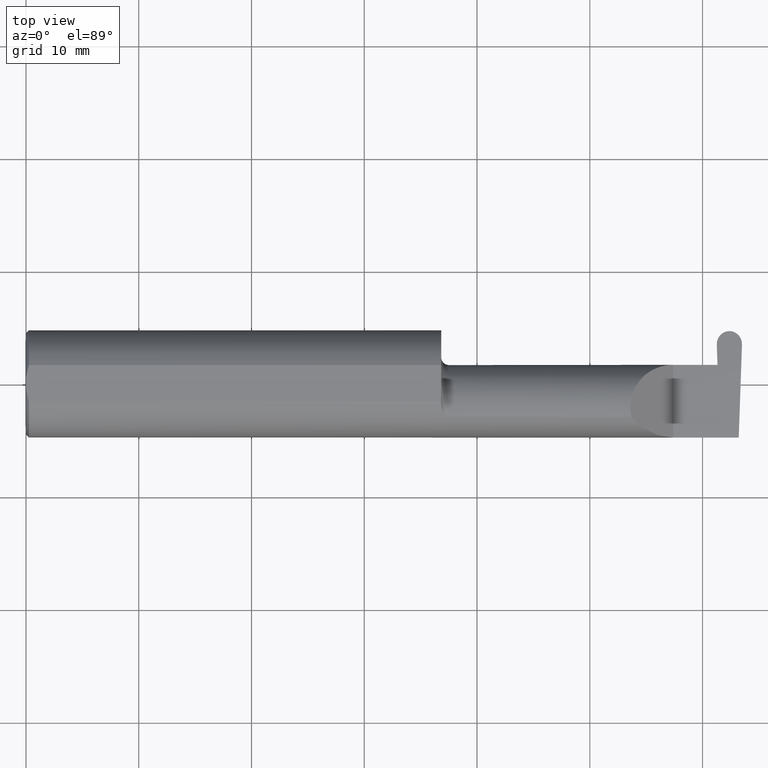
[diagram: clean part render]
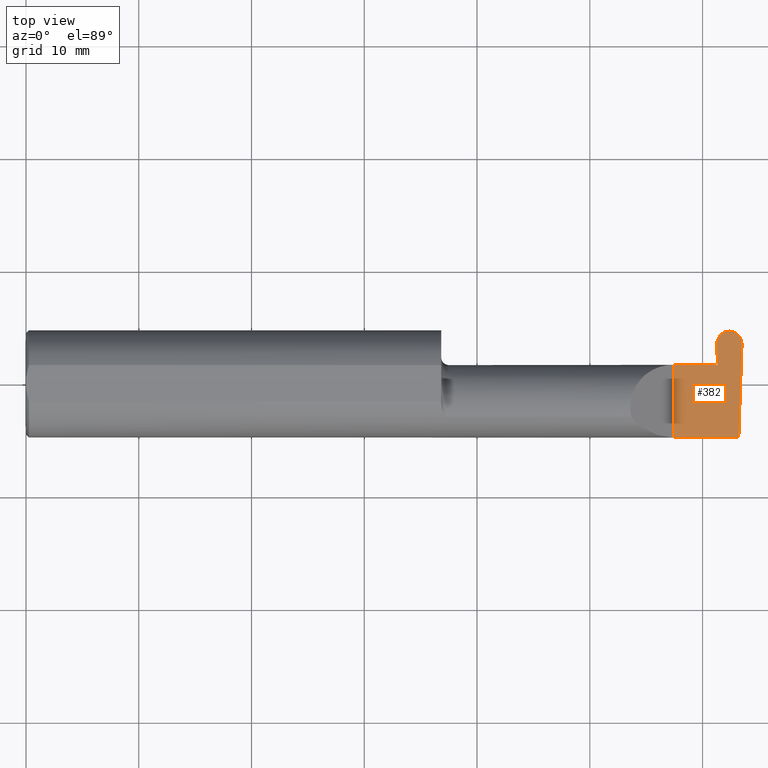
[diagram: same view with one face highlighted and labeled with its STEP entity id]
A machine part, top view. The second image highlights one B-rep face of the part: STEP entity #382.
In plain terms, the highlighted planar face has unit normal (-0, 0, -1).
Its self-contained STEP definition (entity closure, byte-faithful):
#7 = ORIENTED_EDGE ( 'NONE', *, *, #657, .T. ) ;
#10 = VERTEX_POINT ( 'NONE', #173 ) ;
#11 = LINE ( 'NONE', #448, #151 ) ;
#16 = DIRECTION ( 'NONE',  ( -0.03489949670249319069, -0.9993908270190959842, 0.000000000000000000 ) ) ;
#45 = CARTESIAN_POINT ( 'NONE',  ( 2.456309424548497322, 0.1846500000000000363, 0.000000000000000000 ) ) ;
#52 = VERTEX_POINT ( 'NONE', #517 ) ;
#64 = ORIENTED_EDGE ( 'NONE', *, *, #95, .F. ) ;
#89 = VECTOR ( 'NONE', #369, 39.37007874015748143 ) ;
#95 = EDGE_CURVE ( 'NONE', #10, #481, #312, .T. ) ;
#101 = CARTESIAN_POINT ( 'NONE',  ( 2.482665624698748186, 0.1846499999999999808, 5.261345637967953601E-18 ) ) ;
#104 = LINE ( 'NONE', #321, #359 ) ;
#109 = CARTESIAN_POINT ( 'NONE',  ( 2.499906297085412898, 0.1370998259008695819, 0.000000000000000000 ) ) ;
#129 = ORIENTED_EDGE ( 'NONE', *, *, #569, .F. ) ;
#132 = VERTEX_POINT ( 'NONE', #685 ) ;
#151 = VECTOR ( 'NONE', #174, 39.37007874015748143 ) ;
#152 = ORIENTED_EDGE ( 'NONE', *, *, #691, .F. ) ;
#157 = CARTESIAN_POINT ( 'NONE',  ( 2.411832552795360574, 0.1390138764844879860, 0.000000000000000000 ) ) ;
#158 = CARTESIAN_POINT ( 'NONE',  ( 2.414359555045604289, 0.06664999999999991764, 0.000000000000000000 ) ) ;
#166 = ORIENTED_EDGE ( 'NONE', *, *, #484, .T. ) ;
#170 = EDGE_LOOP ( 'NONE', ( #496, #7, #247, #152, #64, #491, #129, #646, #166 ) ) ;
#172 = CARTESIAN_POINT ( 'NONE',  ( 2.500000000000000000, -0.2500000000000000555, 0.000000000000000000 ) ) ;
#173 = CARTESIAN_POINT ( 'NONE',  ( 2.260000000000000231, 0.06665000000000002867, 1.285879139104721225E-16 ) ) ;
#174 = DIRECTION ( 'NONE',  ( 1.000000000000000000, -0.000000000000000000, -0.000000000000000000 ) ) ;
#192 =( BOUNDED_CURVE ( )  B_SPLINE_CURVE ( 3, ( #609, #550, #670, #285 ),
 .UNSPECIFIED., .F., .T. ) 
 B_SPLINE_CURVE_WITH_KNOTS ( ( 4, 4 ),
 ( 3.057488531086357764, 4.656081685705083295 ),
 .UNSPECIFIED. ) 
 CURVE ( )  GEOMETRIC_REPRESENTATION_ITEM ( )  RATIONAL_B_SPLINE_CURVE ( ( 1.000000000000000000, 0.7981407609938078185, 0.7981407609938078185, 1.000000000000000000 ) ) 
 REPRESENTATION_ITEM ( '' )  );
#209 = LINE ( 'NONE', #422, #602 ) ;
#232 = CARTESIAN_POINT ( 'NONE',  ( 2.499906297085412898, 0.1370998259008695819, 0.000000000000000000 ) ) ;
#234 = LINE ( 'NONE', #327, #545 ) ;
#240 = VERTEX_POINT ( 'NONE', #158 ) ;
#247 = ORIENTED_EDGE ( 'NONE', *, *, #600, .F. ) ;
#258 = CARTESIAN_POINT ( 'NONE',  ( 2.456309424548497322, 0.1846500000000000363, 0.000000000000000000 ) ) ;
#260 = VERTEX_POINT ( 'NONE', #109 ) ;
#285 = CARTESIAN_POINT ( 'NONE',  ( 2.411899392914586659, 0.1370998259008695541, 0.000000000000000000 ) ) ;
#293 = VECTOR ( 'NONE', #633, 39.37007874015748143 ) ;
#310 = VERTEX_POINT ( 'NONE', #537 ) ;
#311 = DIRECTION ( 'NONE',  ( -1.000000000000000000, -0.000000000000000000, -0.000000000000000000 ) ) ;
#312 = LINE ( 'NONE', #534, #293 ) ;
#321 = CARTESIAN_POINT ( 'NONE',  ( -0.001039370078739994957, 0.1846500000000000363, 0.000000000000000000 ) ) ;
#327 = CARTESIAN_POINT ( 'NONE',  ( 2.260000000000000231, -0.2500000000000000555, 2.939152317953647352E-17 ) ) ;
#338 = DIRECTION ( 'NONE',  ( -1.224646799147353947E-16, 0.000000000000000000, -1.000000000000000000 ) ) ;
#341 =( BOUNDED_CURVE ( )  B_SPLINE_CURVE ( 3, ( #232, #445, #101, #45 ),
 .UNSPECIFIED., .F., .T. ) 
 B_SPLINE_CURVE_WITH_KNOTS ( ( 4, 4 ),
 ( 1.627103621474502049, 3.225696776093220475 ),
 .UNSPECIFIED. ) 
 CURVE ( )  GEOMETRIC_REPRESENTATION_ITEM ( )  RATIONAL_B_SPLINE_CURVE ( ( 1.000000000000000000, 0.7981407609938095948, 0.7981407609938095948, 1.000000000000000000 ) ) 
 REPRESENTATION_ITEM ( '' )  );
#342 = CARTESIAN_POINT ( 'NONE',  ( 2.499973137204639428, 0.1390138764844880415, 0.000000000000000000 ) ) ;
#359 = VECTOR ( 'NONE', #640, 39.37007874015748143 ) ;
#369 = DIRECTION ( 'NONE',  ( -0.03489949670249400948, 0.9993908270190959842, -0.000000000000000000 ) ) ;
#382 = ADVANCED_FACE ( 'NONE', ( #607 ), #623, .F. ) ;
#401 = DIRECTION ( 'NONE',  ( -1.000000000000000000, 0.000000000000000000, 1.224646799147353947E-16 ) ) ;
#422 = CARTESIAN_POINT ( 'NONE',  ( 3.749399456654646757E-32, -0.1873499999999999610, 3.061616997868383634E-16 ) ) ;
#445 = CARTESIAN_POINT ( 'NONE',  ( 2.500873303789769242, 0.1647912748130947458, 3.031548046095857169E-18 ) ) ;
#447 = EDGE_CURVE ( 'NONE', #260, #310, #671, .T. ) ;
#448 = CARTESIAN_POINT ( 'NONE',  ( 2.414359555045604289, 0.06664999999999991764, 0.000000000000000000 ) ) ;
#468 = VERTEX_POINT ( 'NONE', #516 ) ;
#481 = VERTEX_POINT ( 'NONE', #554 ) ;
#482 = LINE ( 'NONE', #157, #89 ) ;
#484 = EDGE_CURVE ( 'NONE', #260, #549, #341, .T. ) ;
#491 = ORIENTED_EDGE ( 'NONE', *, *, #632, .F. ) ;
#496 = ORIENTED_EDGE ( 'NONE', *, *, #565, .F. ) ;
#516 = CARTESIAN_POINT ( 'NONE',  ( 2.260000000000000231, -0.1873499999999999888, 2.939152317953647352E-17 ) ) ;
#517 = CARTESIAN_POINT ( 'NONE',  ( 2.455496265451502236, 0.1846500000000000363, 0.000000000000000000 ) ) ;
#534 = CARTESIAN_POINT ( 'NONE',  ( 1.450000000000000178, 0.06664999999999997315, 1.285879139104721225E-16 ) ) ;
#537 = CARTESIAN_POINT ( 'NONE',  ( 2.488576259503493926, -0.1873499999999999888, 0.000000000000000000 ) ) ;
#545 = VECTOR ( 'NONE', #660, 39.37007874015748143 ) ;
#549 = VERTEX_POINT ( 'NONE', #258 ) ;
#550 = CARTESIAN_POINT ( 'NONE',  ( 2.429140065301251372, 0.1846500000000001473, 8.878101985489642774E-18 ) ) ;
#554 = CARTESIAN_POINT ( 'NONE',  ( 2.405238904245578624, 0.06664999999999991764, 0.000000000000000000 ) ) ;
#565 = EDGE_CURVE ( 'NONE', #52, #549, #104, .T. ) ;
#569 = EDGE_CURVE ( 'NONE', #310, #468, #209, .T. ) ;
#577 = VECTOR ( 'NONE', #16, 39.37007874015748854 ) ;
#600 = EDGE_CURVE ( 'NONE', #240, #132, #482, .T. ) ;
#602 = VECTOR ( 'NONE', #311, 39.37007874015748143 ) ;
#607 = FACE_OUTER_BOUND ( 'NONE', #170, .T. ) ;
#609 = CARTESIAN_POINT ( 'NONE',  ( 2.455496265451502236, 0.1846500000000000363, 0.000000000000000000 ) ) ;
#623 = PLANE ( 'NONE',  #703 ) ;
#632 = EDGE_CURVE ( 'NONE', #468, #10, #234, .T. ) ;
#633 = DIRECTION ( 'NONE',  ( 1.000000000000000000, 7.100831337523756508E-17, 0.000000000000000000 ) ) ;
#640 = DIRECTION ( 'NONE',  ( 1.000000000000000000, -0.000000000000000000, -0.000000000000000000 ) ) ;
#646 = ORIENTED_EDGE ( 'NONE', *, *, #447, .F. ) ;
#657 = EDGE_CURVE ( 'NONE', #52, #132, #192, .T. ) ;
#660 = DIRECTION ( 'NONE',  ( -0.000000000000000000, 1.000000000000000000, -0.000000000000000000 ) ) ;
#670 = CARTESIAN_POINT ( 'NONE',  ( 2.410932386210230760, 0.1647912748130948291, 1.110789957736176039E-17 ) ) ;
#671 = LINE ( 'NONE', #342, #577 ) ;
#685 = CARTESIAN_POINT ( 'NONE',  ( 2.411899392914586659, 0.1370998259008695541, 0.000000000000000000 ) ) ;
#691 = EDGE_CURVE ( 'NONE', #481, #240, #11, .T. ) ;
#703 = AXIS2_PLACEMENT_3D ( 'NONE', #172, #338, #401 ) ;